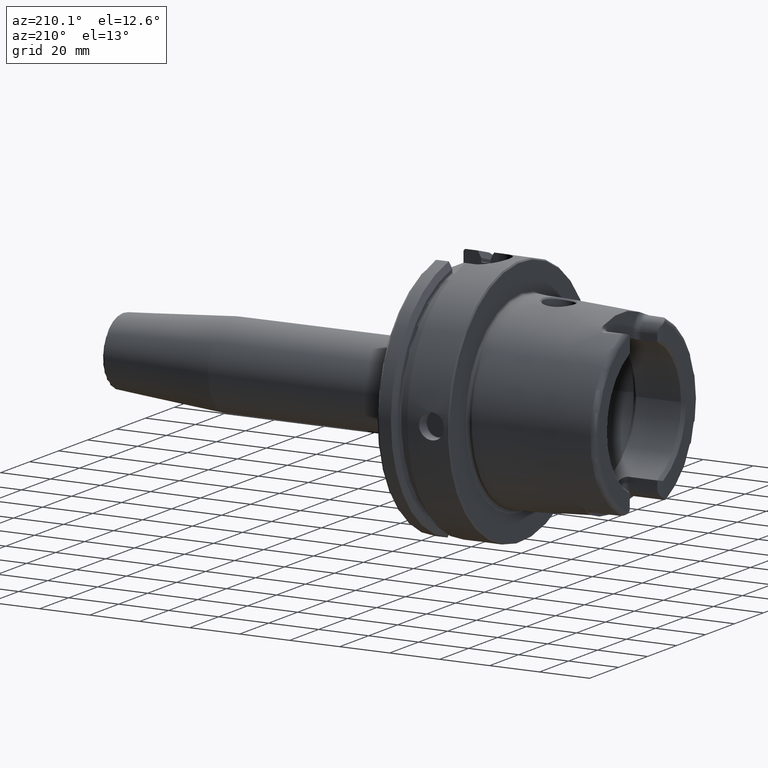
[diagram: clean part render]
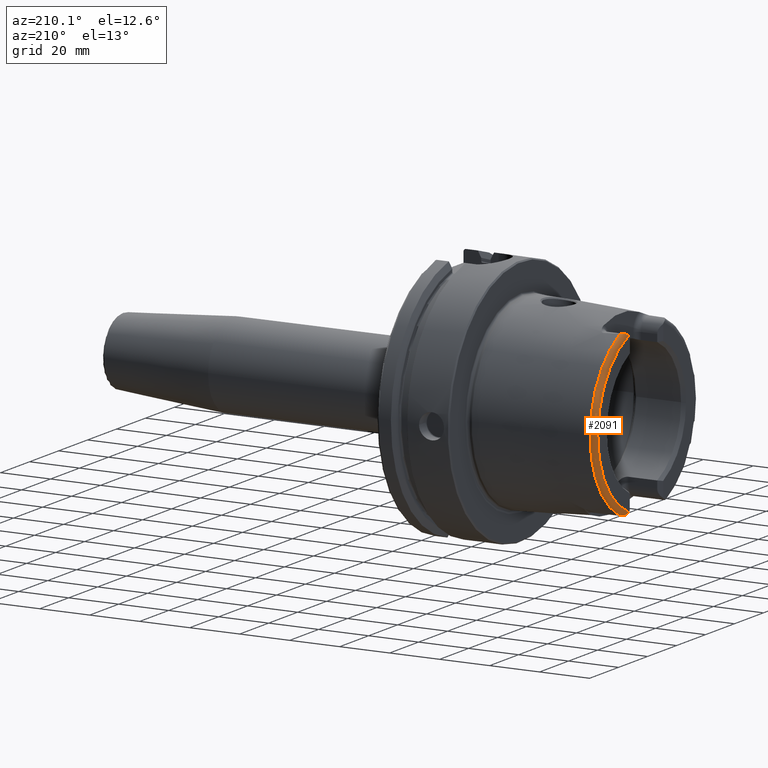
[diagram: same view with one face highlighted and labeled with its STEP entity id]
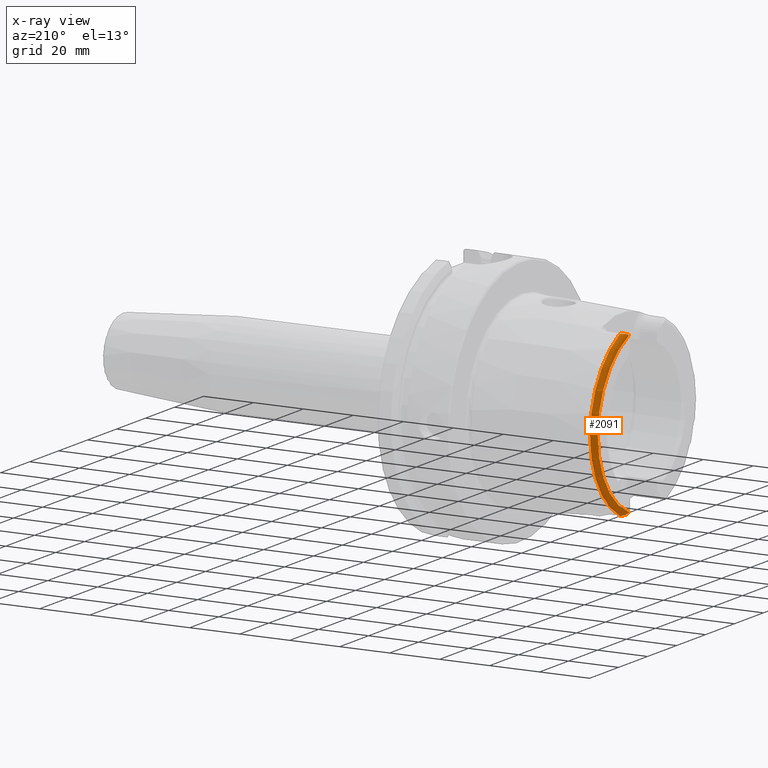
[diagram: x-ray of the same camera — body ghosted, the highlighted face saturated]
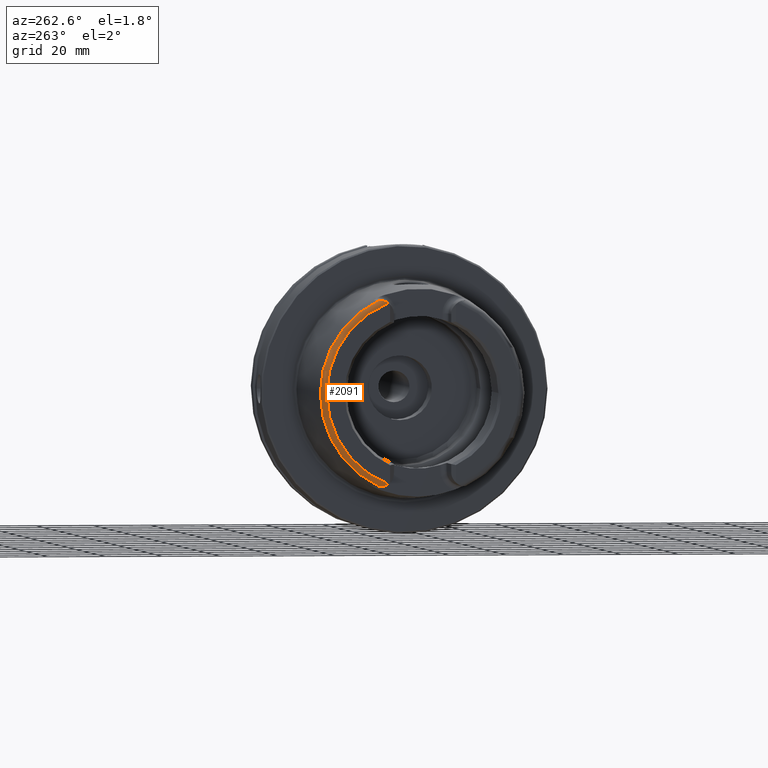
[diagram: same view with one face highlighted and labeled with its STEP entity id]
A machine part, auxiliary view. The second image highlights one B-rep face of the part: STEP entity #2091.
The next image is the same camera in x-ray: the body ghosted, the highlighted face saturated — about 0% of this face is hidden behind the body in this view.
A second angle (auxiliary view) of the same face is appended — the face is thin or edge-on in the first view.
In plain terms, the highlighted toroidal blend (fillet) surface has major radius 33.6002 mm and minor (blend) radius 2 mm.
Its self-contained STEP definition (entity closure, byte-faithful):
#31=B_SPLINE_CURVE_WITH_KNOTS('',3,(#3163,#3164,#3165,#3166,#3167,#3168,
#3169,#3170,#3171,#3172,#3173,#3174),.UNSPECIFIED.,.F.,.F.,(4,2,2,2,2,4),
(-0.744485085130335,-0.701284148098614,-0.656581713087918,-0.531183195108729,
-0.406814905045398,-0.320767863003946),.UNSPECIFIED.);
#36=B_SPLINE_CURVE_WITH_KNOTS('',3,(#3282,#3283,#3284,#3285,#3286,#3287,
#3288,#3289,#3290,#3291,#3292,#3293),.UNSPECIFIED.,.F.,.F.,(4,2,2,2,2,4),
(-0.33049294128038,-0.267730672592795,-0.15978363726818,-0.0785649842435549,
-0.0319753598823885,-6.79221864813266E-5),.UNSPECIFIED.);
#158=TOROIDAL_SURFACE('',#2347,33.6001839277785,2.);
#307=FACE_OUTER_BOUND('',#438,.T.);
#438=EDGE_LOOP('',(#1855,#1856,#1857,#1858));
#723=CIRCLE('',#2225,35.5976786130245);
#784=CIRCLE('',#2348,33.6001839277785);
#857=VERTEX_POINT('',#3160);
#858=VERTEX_POINT('',#3162);
#883=VERTEX_POINT('',#3272);
#884=VERTEX_POINT('',#3281);
#1079=EDGE_CURVE('',#858,#857,#31,.T.);
#1111=EDGE_CURVE('',#884,#883,#36,.T.);
#1130=EDGE_CURVE('',#858,#883,#723,.T.);
#1302=EDGE_CURVE('',#857,#884,#784,.T.);
#1855=ORIENTED_EDGE('',*,*,#1111,.T.);
#1856=ORIENTED_EDGE('',*,*,#1130,.F.);
#1857=ORIENTED_EDGE('',*,*,#1079,.T.);
#1858=ORIENTED_EDGE('',*,*,#1302,.T.);
#2091=ADVANCED_FACE('',(#307),#158,.T.);
#2225=AXIS2_PLACEMENT_3D('',#3550,#2614,#2615);
#2347=AXIS2_PLACEMENT_3D('',#4481,#2917,#2918);
#2348=AXIS2_PLACEMENT_3D('',#4482,#2919,#2920);
#2614=DIRECTION('center_axis',(1.,0.,0.));
#2615=DIRECTION('ref_axis',(0.,0.,-1.));
#2917=DIRECTION('center_axis',(1.,0.,0.));
#2918=DIRECTION('ref_axis',(0.,0.,-1.));
#2919=DIRECTION('center_axis',(1.,0.,0.));
#2920=DIRECTION('ref_axis',(0.,0.,-1.));
#3160=CARTESIAN_POINT('',(-50.,12.0743049948301,-31.355757348091));
#3162=CARTESIAN_POINT('',(-48.1000748840304,15.0787152148571,-32.2463497175327));
#3163=CARTESIAN_POINT('Ctrl Pts',(-48.1000748840304,15.0787152148571,-32.2463497175327));
#3164=CARTESIAN_POINT('Ctrl Pts',(-48.2105289331959,15.0644723890649,-32.2469009162952));
#3165=CARTESIAN_POINT('Ctrl Pts',(-48.3152849211513,15.0274043790922,-32.2483365520296));
#3166=CARTESIAN_POINT('Ctrl Pts',(-48.5158350355592,14.9227249886344,-32.2501807122049));
#3167=CARTESIAN_POINT('Ctrl Pts',(-48.6114759122293,14.853948633775,-32.2504380099703));
#3168=CARTESIAN_POINT('Ctrl Pts',(-48.9444340259589,14.5699075364914,-32.2439932048825));
#3169=CARTESIAN_POINT('Ctrl Pts',(-49.1873237794489,14.2618237213855,-32.2229124522755));
#3170=CARTESIAN_POINT('Ctrl Pts',(-49.6096022065355,13.5557805634606,-32.0777680620402));
#3171=CARTESIAN_POINT('Ctrl Pts',(-49.7790094341757,13.1775605707035,-31.9575317726829));
#3172=CARTESIAN_POINT('Ctrl Pts',(-49.9573633441756,12.558596693048,-31.6661869684752));
#3173=CARTESIAN_POINT('Ctrl Pts',(-50.,12.3094122367882,-31.5218463066117));
#3174=CARTESIAN_POINT('Ctrl Pts',(-50.,12.0743049948301,-31.355757348091));
#3272=CARTESIAN_POINT('',(-48.1000748840304,15.0787152148571,32.2463497175327));
#3281=CARTESIAN_POINT('',(-50.,12.0743049948301,31.355757348091));
#3282=CARTESIAN_POINT('Ctrl Pts',(-50.,12.0743049948301,31.355757348091));
#3283=CARTESIAN_POINT('Ctrl Pts',(-50.,12.2864160042027,31.5056008677719));
#3284=CARTESIAN_POINT('Ctrl Pts',(-49.965181241452,12.5182840828266,31.6438016135975));
#3285=CARTESIAN_POINT('Ctrl Pts',(-49.780095292634,13.1934814711235,31.9701190766011));
#3286=CARTESIAN_POINT('Ctrl Pts',(-49.5793805506892,13.6220310736955,32.097613465566));
#3287=CARTESIAN_POINT('Ctrl Pts',(-49.170216000735,14.274989330902,32.2194840260055));
#3288=CARTESIAN_POINT('Ctrl Pts',(-48.9762638716764,14.5215824129494,32.2396097025416));
#3289=CARTESIAN_POINT('Ctrl Pts',(-48.6666306582889,14.8133702905837,32.2505591140316));
#3290=CARTESIAN_POINT('Ctrl Pts',(-48.5389792055844,14.9127554064334,32.2504492219699));
#3291=CARTESIAN_POINT('Ctrl Pts',(-48.3058528414878,15.0307034754738,32.2482068363322));
#3292=CARTESIAN_POINT('Ctrl Pts',(-48.2055479344945,15.0651146787529,32.2468760596209));
#3293=CARTESIAN_POINT('Ctrl Pts',(-48.1000748840303,15.0787152148571,32.2463497175327));
#3550=CARTESIAN_POINT('Origin',(-48.1000748840304,0.,0.));
#4481=CARTESIAN_POINT('Origin',(-48.,0.,0.));
#4482=CARTESIAN_POINT('Origin',(-50.,0.,0.));